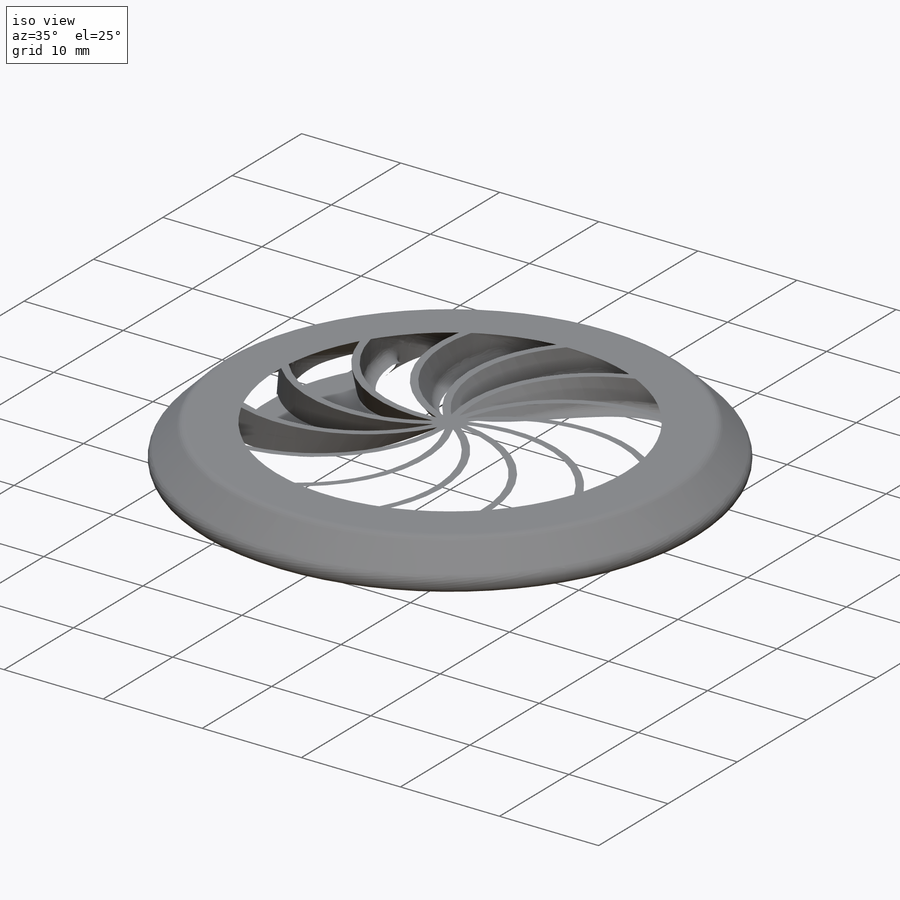
[diagram: iso view]
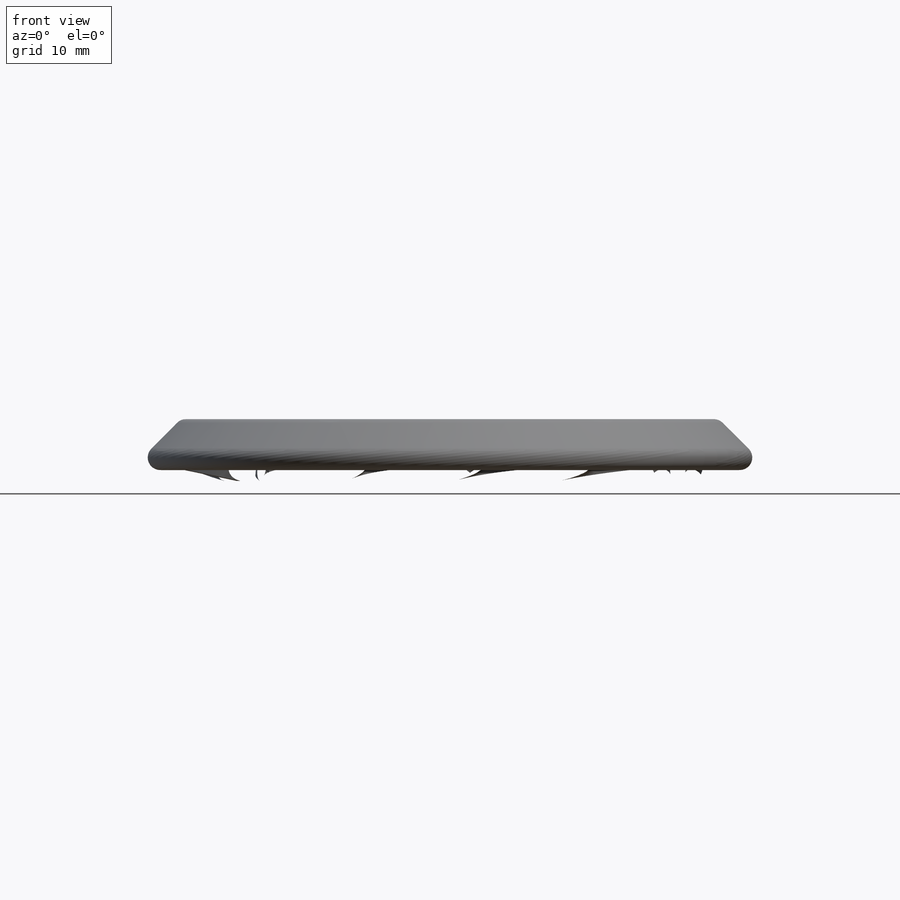
[diagram: front view]
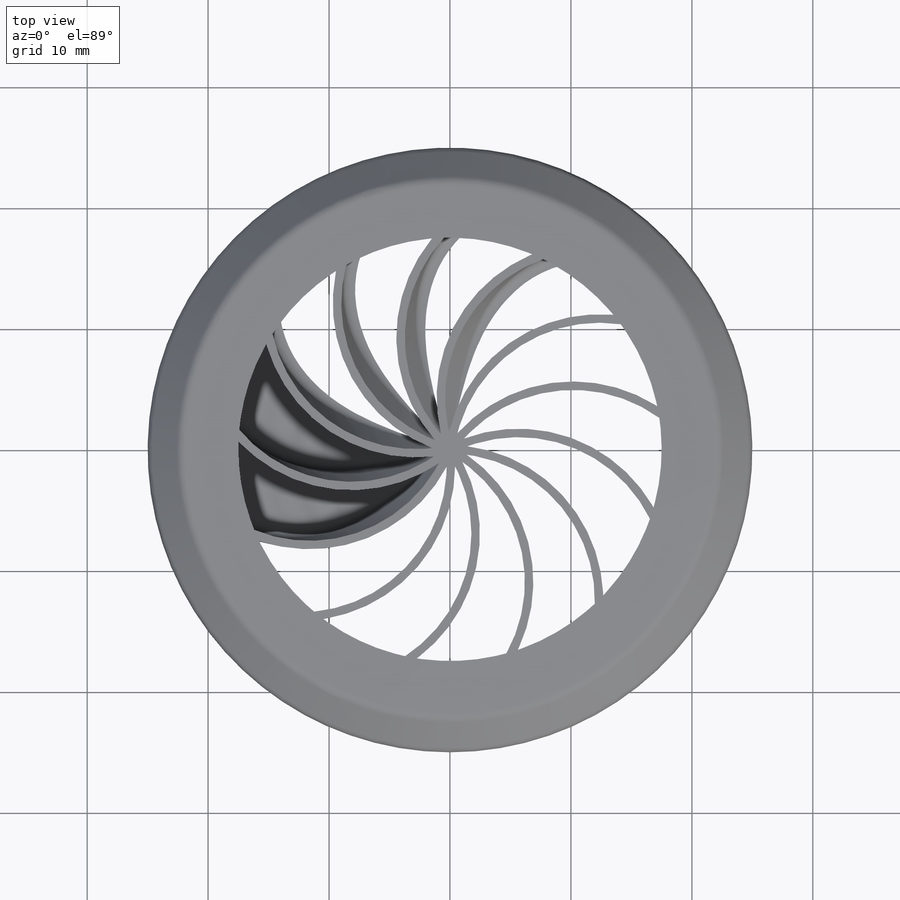
[diagram: top view]
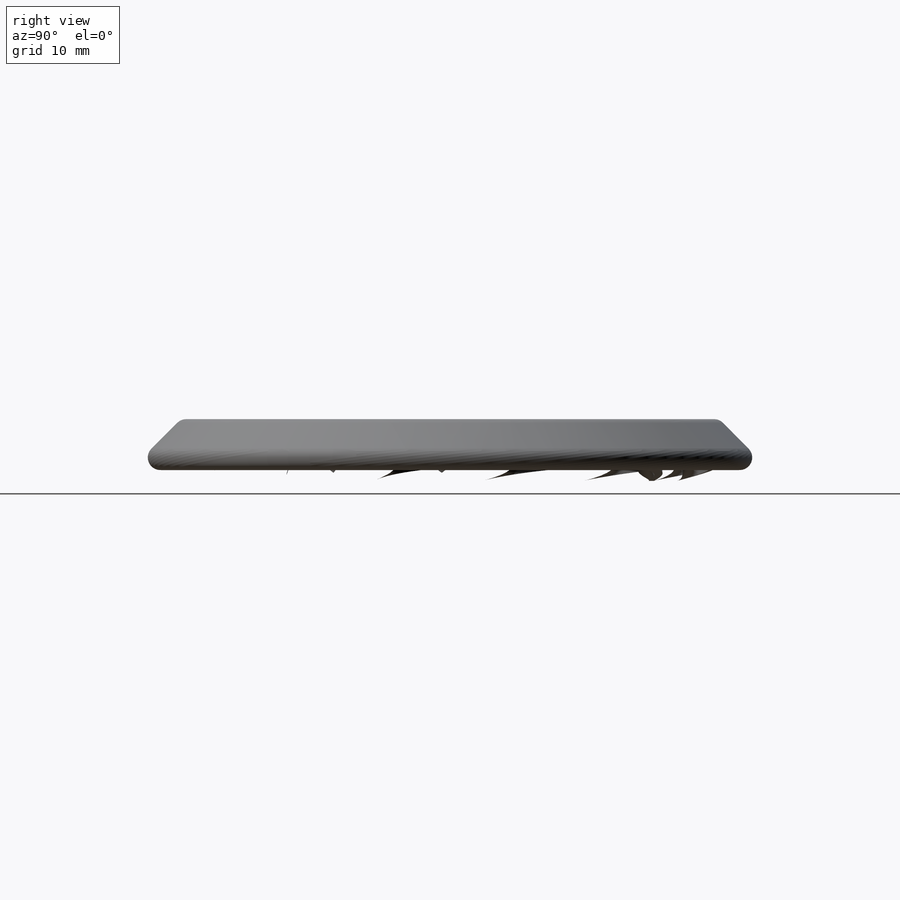
[diagram: right view]
SOLIDWORKS PART (.sldprt)
format: sldprt  version: not decoded by parser v0  size: 2,701,824 bytes
history: native  units: mm
features: sketch x6, plane x5, boolean_combine x3, revolve x2, material x1, pattern_circular x1, extrude x1 (+8 scaffold rows collapsed)
feature tree (27):
  scaffold x8  (default folders/planes/origin — collapsed)
  material  "Materiál <není určen>"
  plane  "Přední rovina"
  plane  "Horní rovina"
  plane  "Pravá rovina"
  sketch  "Skica1"  dims[c1.D4=20.0mm c1.D6=0.5mm c1.D8=3.0mm c1.D9=~7.187591mm c1.D1=1.0mm c2.D9=~31.897597mm c2.D4=40.0mm c2.D3=~23.81256mm c2.D1=4.0mm c2.D6=~10.589275mm c2.D7=2.0mm c2.D10=1.0mm c2.D11=3.0mm c2.D12=20.0mm c2.D5=4.0mm c3.D7=2.0mm c3.D8=3.0mm c3.D14=30.0mm c3.D6=3.0mm c3.D5=50.0mm c4.D8=2.0mm c4.D5=0.5mm c4.D2=2.0mm c4.D10=1.0mm c4.D11=1.0mm c4.D12=40.0mm c4.D14=~51.239559mm c4.D15=3.0mm c4.D3=2.0mm c5.D8=1.0mm c5.D15=1.0mm c5.D13=2.0mm c5.D14=60.0mm c5.D18=1.0mm c6.D15=~1.026716mm c6.D6=1.0mm c6.D12=10.0mm c6.D17=1.0mm c6.D1=1.0mm c6.D2=6.0mm c6.D3=60.0mm c6.D4=3.0mm c6.D5=20.0mm c7.D6=20.0mm c7.D7=~12.545307mm c8.D7=50.0deg c8.D9=1.0mm c8.D3=1.0mm c8.D4=50.0mm c8.D2=~8.833549mm c9.D2=20.0deg c9.D5=~12.361486mm c10.D5=35.0deg c10.D6=1.0mm c10.D7=25.0mm c10.D9=4.0mm c10.D10=~7.244886mm c11.D10=45.0deg c12.D10=~7.244886mm c13.D10=~59.21567deg c13.D13=13.0mm c13.D2=~5.979329mm c14.D2=50.0deg c14.D6=28.0mm c14.D3=1.0mm c14.D8=10.0mm c14.D11=1.0mm c15.D3=1.0mm c15.D5=27.0mm c15.D9=4.0mm c16.D5=~7.174415mm c17.D5=10.0deg c17.D2=30.0mm c17.D3=2.0mm c17.D6=41.2519mm c18.D6=60.0deg c18.D7=~9.811355mm c19.D7=45.0deg c20.D7=41.2519mm c21.D7=45.0deg c21.D9=~0.499435mm c22.D9=55.0deg c22.D7=~7.641352mm c23.D7=45.0deg c23.D10=~5.371009mm c24.D10=5.0deg c24.D2=2.5mm c24.D11=1.0mm c24.D15=0.7mm c24.D14=0.7mm c24.D6=~24.41218mm c25.D6=45.0deg c26.D6=~11.393631mm c27.D6=120.0deg c28.D6=~11.393631mm c29.D6=50.0deg c29.D5=~51.393636mm c30.D5=70.0deg c30.D2=2.5mm c30.D6=~3.790768mm c31.D6=45.0deg c32.D6=~3.790768mm c33.D6=135.0deg c34.D6=~35.434034mm c35.D6=135.0deg c35.D3=~3.516986mm c36.D3=45.0deg c36.D6=~5.01707mm c37.D6=45.0deg c37.D7=35.0mm c37.D14=1.0mm c37.D15=25.0mm c37.D16=8.0mm c37.D12=13.0mm c37.D17=1.0mm c38.D15=30.0mm c38.D14=30.0mm c38.D17=1.0mm c38.D18=~0.712139mm c38.D13=1.0mm c39.D15=0.5mm c39.D17=2.0mm c39.D13=0.7mm c39.D6=~45.591597mm c40.D6=45.0deg c40.D15=2.5mm c40.D2=~3.912871mm c41.D2=45.0deg c41.D3=2.5mm c41.D6=39.0mm c41.D15=6.5mm c42.D15=~6.158176deg c42.D12=13.0mm c43.D15=6.0mm c43.D5=~48.29422mm c44.D5=70.0deg c44.D8=13.0mm c44.D15=13.0mm c44.D13=~2.283966mm c44.D12=~1.843183mm c45.D12=45.0deg c45.D18=1.0mm c45.D13=0.45mm c46.D18=2.0mm c46.D13=0.7mm c46.D19=0.6mm c46.D14=0.7mm]
  revolve  "Rotovat1"  Angle=360deg
  sketch  "Skica14"  dims[c1.D2=2.0mm c1.D1=~8.668347mm c2.D1=40.0deg c2.D3=~28.054021mm c3.D3=~4.98865deg c3.D4=1.5mm c3.D1=~2.953203mm c4.D4=~2.277095mm c5.D4=40.0deg c5.D1=~2.277095mm c6.D1=45.0deg c6.D4=3.0mm]
  revolve  "mask1"  Angle=360deg
  plane  "Rovina1"
  plane  "Rovina2"
  sketch  "Skica15"  dims[c1.D2=35.0mm c1.D3=~12.682789mm c2.D2=20.0mm c2.D4=8.0mm c2.D6=40.0mm c2.D3=55.0mm c2.D5=35.0mm c3.D3=~46.438985mm c3.D1=~12.087343mm c4.D1=5.0deg c4.D2=5.0mm c4.D3=~18.044909mm c5.D3=60.0deg c5.D1=~21.178624mm c6.D1=10.0deg c6.D2=~8.940408mm c7.D2=80.0deg c8.D2=~8.940408mm c9.D2=85.0deg c10.D2=~9.127394mm c11.D2=120.0deg c12.D2=~21.715932mm c13.D2=110.0deg c13.D3=13.0mm c13.D1=~3.770932mm c14.D1=70.0deg c14.D2=~5.371195mm c15.D2=60.0deg c15.D4=5.0mm c15.D5=4.0mm c16.D2=~11.649833mm c17.D2=~39.932656deg c18.D2=12.0mm c18.D3=~12.276943mm c19.D3=~49.08125deg c19.D4=~11.05598mm c19.D7=~8.584613mm c20.D7=55.0deg c20.D4=~3.858431mm c21.D4=30.0deg c21.D3=5.0mm c21.D1=~26.374059mm c22.D1=110.0deg c22.D2=~25.141934mm c23.D2=110.0deg c23.D4=~11.255953mm c24.D4=15.0deg c24.D5=~15.013105mm c24.D3=2.0mm c25.D5=~12.873252mm c26.D5=70.0deg c26.D3=2.0mm c26.D1=~13.812832mm c27.D1=~128.419069deg c28.D1=~6.115889mm c29.D1=120.0deg c29.D2=~3.073566mm c30.D2=110.0deg c31.D2=~10.97457mm c32.D2=125.0deg c32.D4=6.0mm c32.D5=13.0mm c32.D1=~8.112025mm c33.D1=110.0deg c34.D1=~6.693022mm c35.D1=100.0deg c36.D1=~3.383098mm c37.D1=100.0deg]
  sketch  "Skica17"  dims[D1=0.35mm D2=0.35mm]
  sketch  "Skica18"  dims[c1.D1=0.35mm c1.D2=0.35mm c2.D1=0.35mm c2.D2=0.35mm]
  boolean_combine  "Kombinovat1"  ModelUUID=0mm UUID=0mm
  boolean_combine  "Kombinovat2"
  pattern_circular  "Kruhové pole3"  Count=13 Angle=360deg
  boolean_combine  "Kombinovat5"
  sketch  "Skica12"  dims[c1.D3=3.0mm c1.D1=4.0mm c1.D2=~2.437651mm c2.D1=4.0mm c2.D2=3.0mm c3.D1=4.0mm c3.D2=5.0mm c3.D3=0.5mm c4.D2=5.0mm c4.D1=0.35mm c5.D2=0.35mm c5.D1=0.35mm c6.D2=0.35mm]
  extrude  "Přidat vysunutím2"  Depth=10mm
decode coverage: 11 of 13 modeling features carry decoded parameters
note: ~ marks probable driven/reference dimensions
note: suppression state not decoded; provenance and decode notes live in map.json
